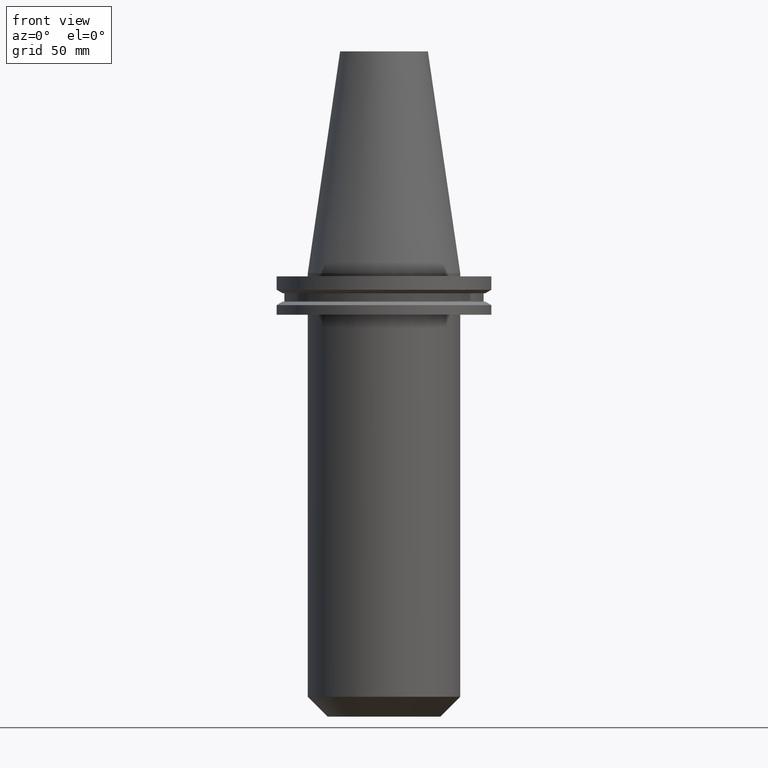
[diagram: clean part render]
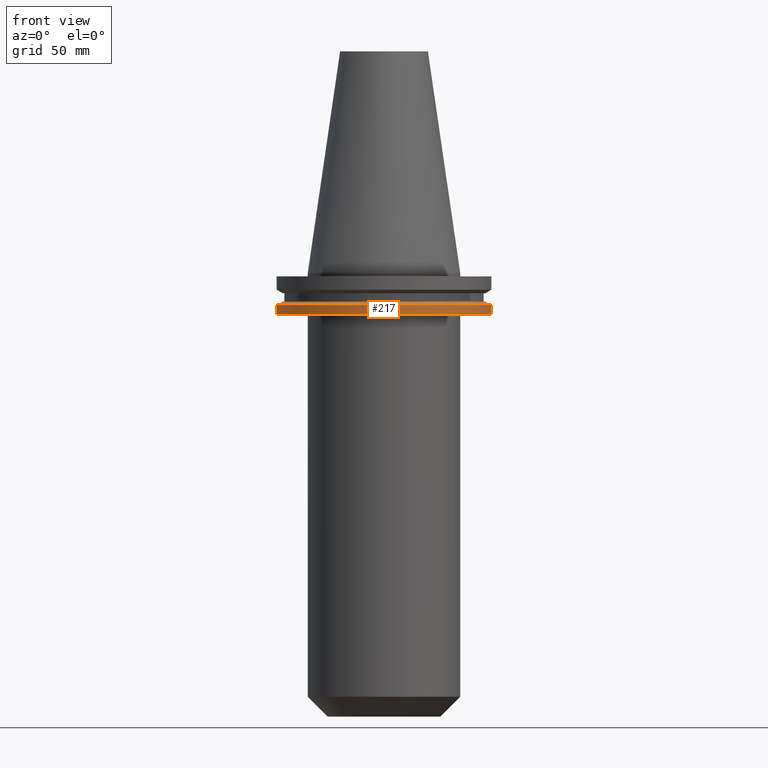
[diagram: same view with one face highlighted and labeled with its STEP entity id]
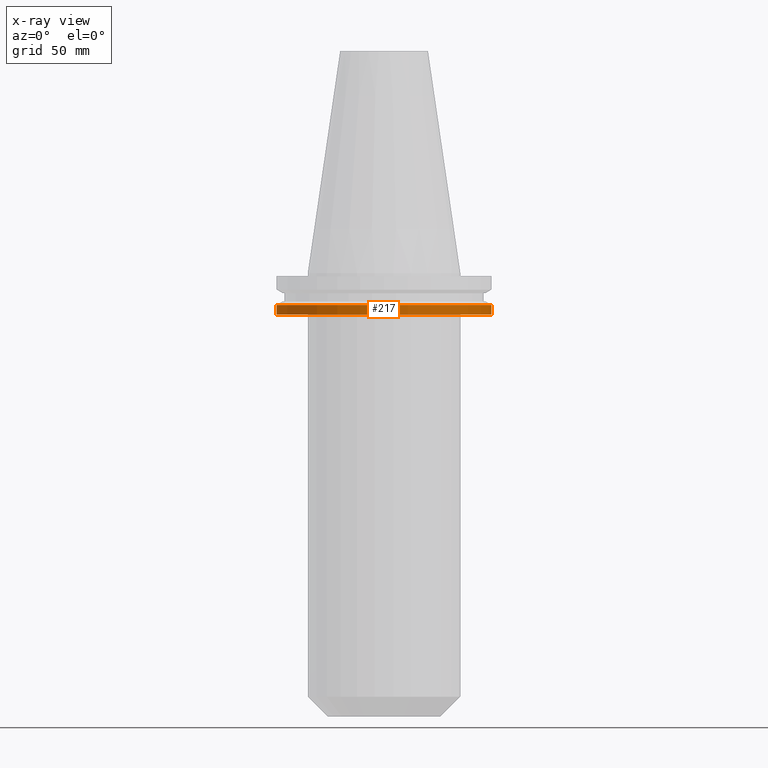
[diagram: x-ray of the same camera — body ghosted, the highlighted face saturated]
A machine part, front view. The second image highlights one B-rep face of the part: STEP entity #217.
The next image is the same camera in x-ray: the body ghosted, the highlighted face saturated — about 0% of this face is hidden behind the body in this view.
In plain terms, the highlighted cylindrical surface (partial cylindrical patch) has radius 49.215 mm, axis along (-0, -0, 1).
Its self-contained STEP definition (entity closure, byte-faithful):
#8 = CARTESIAN_POINT ( 'NONE',  ( 0.000000000000000000, 0.000000000000000000, -14.65761014474876944 ) ) ;
#41 = EDGE_CURVE ( 'NONE', #761, #171, #53, .T. ) ;
#53 = LINE ( 'NONE', #290, #341 ) ;
#58 = CIRCLE ( 'NONE', #493, 49.21499999999998920 ) ;
#71 = CARTESIAN_POINT ( 'NONE',  ( 0.000000000000000000, 0.000000000000000000, 101.5999999999999943 ) ) ;
#154 = EDGE_CURVE ( 'NONE', #199, #761, #699, .T. ) ;
#171 = VERTEX_POINT ( 'NONE', #727 ) ;
#180 = EDGE_CURVE ( 'NONE', #741, #171, #58, .T. ) ;
#192 = CARTESIAN_POINT ( 'NONE',  ( -49.21499999999998920, 6.027099222003697037E-15, -19.04999999999999716 ) ) ;
#199 = VERTEX_POINT ( 'NONE', #192 ) ;
#205 = DIRECTION ( 'NONE',  ( 1.000000000000000000, 0.000000000000000000, 0.000000000000000000 ) ) ;
#217 = ADVANCED_FACE ( 'NONE', ( #658 ), #351, .T. ) ;
#232 = VECTOR ( 'NONE', #521, 1000.000000000000000 ) ;
#247 = DIRECTION ( 'NONE',  ( -0.000000000000000000, -0.000000000000000000, 1.000000000000000000 ) ) ;
#260 = ORIENTED_EDGE ( 'NONE', *, *, #154, .T. ) ;
#290 = CARTESIAN_POINT ( 'NONE',  ( 49.21499999999998920, 0.000000000000000000, 101.5999999999999943 ) ) ;
#297 = DIRECTION ( 'NONE',  ( 1.000000000000000000, 0.000000000000000000, 0.000000000000000000 ) ) ;
#333 = ORIENTED_EDGE ( 'NONE', *, *, #417, .F. ) ;
#341 = VECTOR ( 'NONE', #654, 1000.000000000000000 ) ;
#351 = CYLINDRICAL_SURFACE ( 'NONE', #589, 49.21499999999998920 ) ;
#357 = AXIS2_PLACEMENT_3D ( 'NONE', #478, #775, #297 ) ;
#417 = EDGE_CURVE ( 'NONE', #199, #741, #508, .T. ) ;
#438 = EDGE_LOOP ( 'NONE', ( #333, #260, #500, #547 ) ) ;
#478 = CARTESIAN_POINT ( 'NONE',  ( 0.000000000000000000, 0.000000000000000000, -19.04999999999999716 ) ) ;
#493 = AXIS2_PLACEMENT_3D ( 'NONE', #8, #247, #599 ) ;
#500 = ORIENTED_EDGE ( 'NONE', *, *, #41, .T. ) ;
#508 = LINE ( 'NONE', #704, #232 ) ;
#521 = DIRECTION ( 'NONE',  ( -0.000000000000000000, -0.000000000000000000, 1.000000000000000000 ) ) ;
#541 = DIRECTION ( 'NONE',  ( -0.000000000000000000, -0.000000000000000000, 1.000000000000000000 ) ) ;
#547 = ORIENTED_EDGE ( 'NONE', *, *, #180, .F. ) ;
#589 = AXIS2_PLACEMENT_3D ( 'NONE', #71, #541, #205 ) ;
#599 = DIRECTION ( 'NONE',  ( 1.000000000000000000, 0.000000000000000000, 0.000000000000000000 ) ) ;
#611 = CARTESIAN_POINT ( 'NONE',  ( -49.21499999999998920, 6.027099222003697037E-15, -14.65761014474876944 ) ) ;
#654 = DIRECTION ( 'NONE',  ( -0.000000000000000000, -0.000000000000000000, 1.000000000000000000 ) ) ;
#658 = FACE_OUTER_BOUND ( 'NONE', #438, .T. ) ;
#665 = CARTESIAN_POINT ( 'NONE',  ( 49.21499999999998920, 0.000000000000000000, -19.04999999999999716 ) ) ;
#699 = CIRCLE ( 'NONE', #357, 49.21499999999998920 ) ;
#704 = CARTESIAN_POINT ( 'NONE',  ( -49.21499999999998920, 6.027099222003697037E-15, 101.5999999999999943 ) ) ;
#727 = CARTESIAN_POINT ( 'NONE',  ( 49.21499999999998920, 0.000000000000000000, -14.65761014474876944 ) ) ;
#741 = VERTEX_POINT ( 'NONE', #611 ) ;
#761 = VERTEX_POINT ( 'NONE', #665 ) ;
#775 = DIRECTION ( 'NONE',  ( -0.000000000000000000, -0.000000000000000000, 1.000000000000000000 ) ) ;